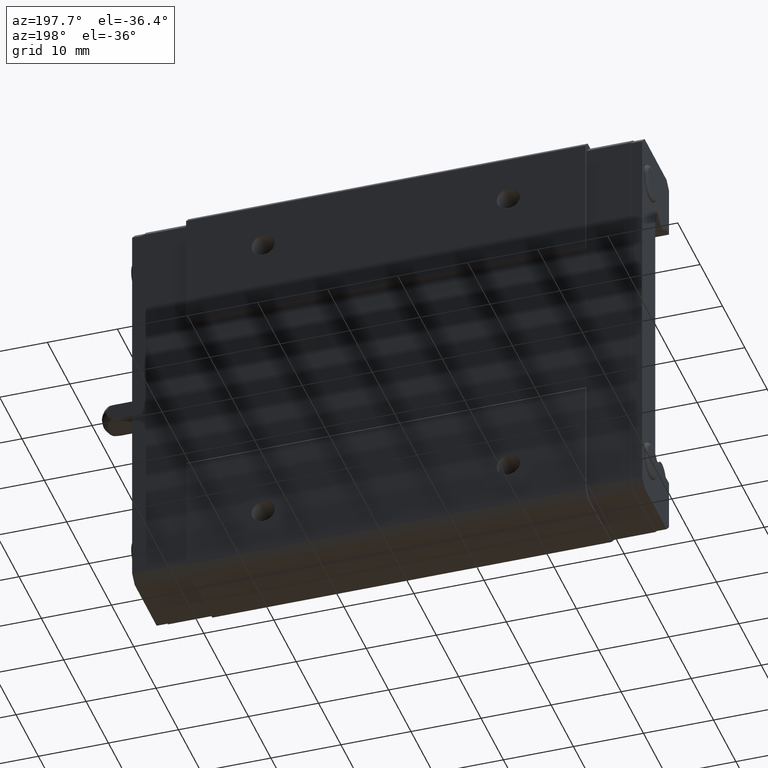
[diagram: clean part render]
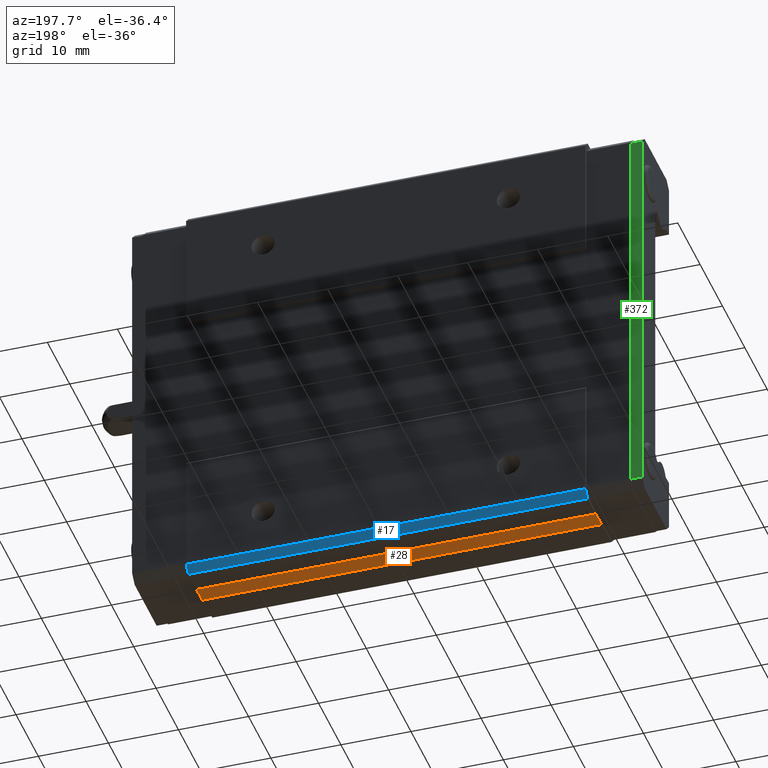
[diagram: same view with three faces highlighted in distinct colors, each labeled with its STEP entity id]
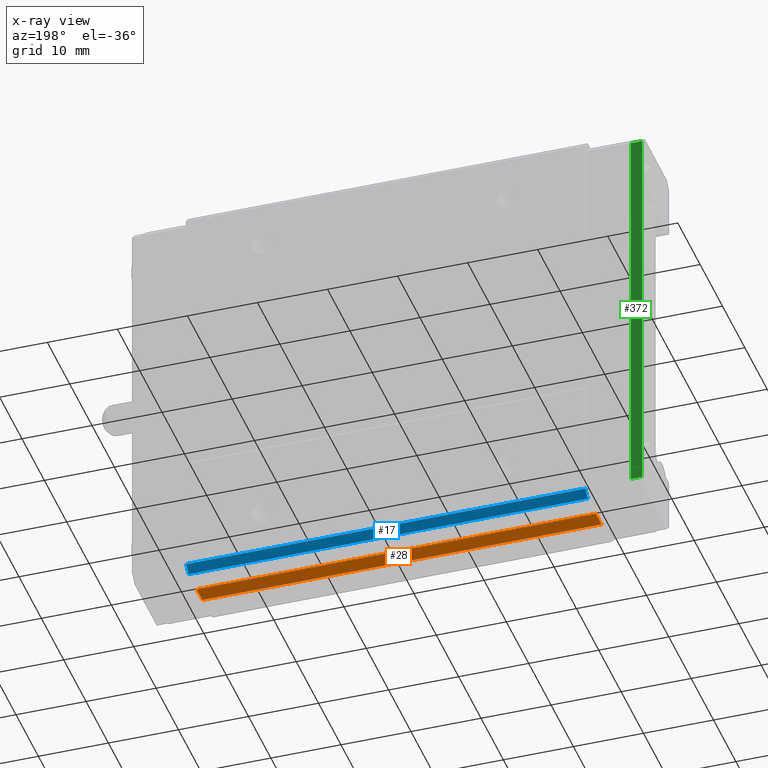
[diagram: x-ray of the same camera — body ghosted, the three highlighted faces saturated]
A machine part, auxiliary view with three faces highlighted in distinct colors.
The next image is the same camera in x-ray (body ghosted, the three faces saturated) — at least one of them is partly hidden behind the body in this view.
Their STEP definitions:

[orange] entity #28 — the highlighted planar face has unit normal (0, -0, -1).
#28 = ADVANCED_FACE ( 'NONE', ( #960 ), #959, .T. ) ;
#30 = EDGE_CURVE ( 'NONE', #3023, #2922, #954, .T. ) ;
#31 = EDGE_LOOP ( 'NONE', ( #34, #3022, #3024, #3089 ) ) ;
#34 = ORIENTED_EDGE ( 'NONE', *, *, #30, .T. ) ;
#951 = DIRECTION ( 'NONE',  ( 1.000000000000000000, 0.0000000000000000000, 0.0000000000000000000 ) ) ;
#952 = VECTOR ( 'NONE', #951, 1000.000000000000000 ) ;
#953 = CARTESIAN_POINT ( 'NONE',  ( -36.90000000000000600, 7.953589838486221800, -29.99999999999999300 ) ) ;
#954 = LINE ( 'NONE', #953, #952 ) ;
#955 = DIRECTION ( 'NONE',  ( 0.0000000000000000000, 1.000000000000000000, -1.119176436114070400E-015 ) ) ;
#956 = DIRECTION ( 'NONE',  ( 0.0000000000000000000, -1.119176436114070400E-015, -1.000000000000000000 ) ) ;
#957 = CARTESIAN_POINT ( 'NONE',  ( 28.50000000000000000, 5.399999999999995900, -29.99999999999998600 ) ) ;
#958 = AXIS2_PLACEMENT_3D ( 'NONE', #957, #956, #955 ) ;
#959 = PLANE ( 'NONE',  #958 ) ;
#960 = FACE_OUTER_BOUND ( 'NONE', #31, .T. ) ;
#2505 = CARTESIAN_POINT ( 'NONE',  ( 28.50000000000000000, 7.953589838486221800, -29.99999999999999300 ) ) ;
#2549 = DIRECTION ( 'NONE',  ( 0.0000000000000000000, -1.000000000000000000, 1.119176436114070400E-015 ) ) ;
#2550 = VECTOR ( 'NONE', #2549, 1000.000000000000000 ) ;
#2551 = CARTESIAN_POINT ( 'NONE',  ( 28.50000000000000000, 5.399999999999995900, -29.99999999999998600 ) ) ;
#2552 = LINE ( 'NONE', #2551, #2550 ) ;
#2557 = CARTESIAN_POINT ( 'NONE',  ( 28.50000000000000000, 5.399999999999995900, -29.99999999999998600 ) ) ;
#2668 = CARTESIAN_POINT ( 'NONE',  ( -28.50000000000000000, 7.953589838486221800, -29.99999999999998900 ) ) ;
#2745 = DIRECTION ( 'NONE',  ( 0.0000000000000000000, -1.000000000000000000, 1.119176436114070400E-015 ) ) ;
#2746 = VECTOR ( 'NONE', #2745, 1000.000000000000000 ) ;
#2747 = CARTESIAN_POINT ( 'NONE',  ( -28.50000000000000000, 5.399999999999995900, -29.99999999999998600 ) ) ;
#2748 = LINE ( 'NONE', #2747, #2746 ) ;
#2749 = DIRECTION ( 'NONE',  ( -1.000000000000000000, 0.0000000000000000000, 0.0000000000000000000 ) ) ;
#2750 = VECTOR ( 'NONE', #2749, 1000.000000000000000 ) ;
#2751 = CARTESIAN_POINT ( 'NONE',  ( 28.50000000000000000, 5.399999999999995900, -29.99999999999998600 ) ) ;
#2752 = LINE ( 'NONE', #2751, #2750 ) ;
#2757 = CARTESIAN_POINT ( 'NONE',  ( -28.50000000000000000, 5.399999999999995900, -29.99999999999998600 ) ) ;
#2922 = VERTEX_POINT ( 'NONE', #2505 ) ;
#2971 = VERTEX_POINT ( 'NONE', #2557 ) ;
#2974 = EDGE_CURVE ( 'NONE', #2922, #2971, #2552, .T. ) ;
#3022 = ORIENTED_EDGE ( 'NONE', *, *, #2974, .T. ) ;
#3023 = VERTEX_POINT ( 'NONE', #2668 ) ;
#3024 = ORIENTED_EDGE ( 'NONE', *, *, #3093, .T. ) ;
#3088 = VERTEX_POINT ( 'NONE', #2757 ) ;
#3089 = ORIENTED_EDGE ( 'NONE', *, *, #3095, .F. ) ;
#3093 = EDGE_CURVE ( 'NONE', #2971, #3088, #2752, .T. ) ;
#3095 = EDGE_CURVE ( 'NONE', #3023, #3088, #2748, .T. ) ;

[blue] entity #17 — the highlighted planar face has unit normal (0, 0.7071, -0.7071).
#6 = EDGE_CURVE ( 'NONE', #2926, #8, #929, .T. ) ;
#7 = ORIENTED_EDGE ( 'NONE', *, *, #2925, .T. ) ;
#8 = VERTEX_POINT ( 'NONE', #925 ) ;
#9 = ORIENTED_EDGE ( 'NONE', *, *, #6, .F. ) ;
#10 = EDGE_CURVE ( 'NONE', #8, #336, #924, .T. ) ;
#11 = ORIENTED_EDGE ( 'NONE', *, *, #10, .F. ) ;
#12 = ORIENTED_EDGE ( 'NONE', *, *, #598, .T. ) ;
#13 = EDGE_LOOP ( 'NONE', ( #12, #11, #9, #7 ) ) ;
#17 = ADVANCED_FACE ( 'NONE', ( #909 ), #914, .T. ) ;
#336 = VERTEX_POINT ( 'NONE', #1374 ) ;
#596 = VERTEX_POINT ( 'NONE', #1785 ) ;
#598 = EDGE_CURVE ( 'NONE', #596, #336, #1784, .T. ) ;
#909 = FACE_OUTER_BOUND ( 'NONE', #13, .T. ) ;
#914 = PLANE ( 'NONE',  #974 ) ;
#921 = DIRECTION ( 'NONE',  ( 0.0000000000000000000, -0.7071067811865512400, -0.7071067811865439100 ) ) ;
#922 = VECTOR ( 'NONE', #921, 1000.000000000000000 ) ;
#923 = CARTESIAN_POINT ( 'NONE',  ( -28.50000000000000000, 11.59999999999998900, -29.99999999999999300 ) ) ;
#924 = LINE ( 'NONE', #923, #922 ) ;
#925 = CARTESIAN_POINT ( 'NONE',  ( -28.50000000000000000, 12.59999999999998900, -29.00000000000000000 ) ) ;
#926 = DIRECTION ( 'NONE',  ( -1.000000000000000000, 0.0000000000000000000, 0.0000000000000000000 ) ) ;
#927 = VECTOR ( 'NONE', #926, 1000.000000000000000 ) ;
#928 = CARTESIAN_POINT ( 'NONE',  ( 28.50000000000000000, 12.59999999999998900, -29.00000000000000000 ) ) ;
#929 = LINE ( 'NONE', #928, #927 ) ;
#971 = DIRECTION ( 'NONE',  ( 0.0000000000000000000, 0.7071067811865512400, 0.7071067811865439100 ) ) ;
#972 = DIRECTION ( 'NONE',  ( 0.0000000000000000000, 0.7071067811865439100, -0.7071067811865512400 ) ) ;
#973 = CARTESIAN_POINT ( 'NONE',  ( 28.50000000000000000, 11.59999999999998900, -29.99999999999999300 ) ) ;
#974 = AXIS2_PLACEMENT_3D ( 'NONE', #973, #972, #971 ) ;
#1374 = CARTESIAN_POINT ( 'NONE',  ( -28.50000000000000000, 11.59999999999998900, -29.99999999999999300 ) ) ;
#1784 = LINE ( 'NONE', #1843, #1842 ) ;
#1785 = CARTESIAN_POINT ( 'NONE',  ( 28.50000000000000000, 11.59999999999998900, -29.99999999999999300 ) ) ;
#1841 = DIRECTION ( 'NONE',  ( -1.000000000000000000, 0.0000000000000000000, 0.0000000000000000000 ) ) ;
#1842 = VECTOR ( 'NONE', #1841, 1000.000000000000000 ) ;
#1843 = CARTESIAN_POINT ( 'NONE',  ( 28.50000000000000000, 11.59999999999998900, -29.99999999999999300 ) ) ;
#2495 = CARTESIAN_POINT ( 'NONE',  ( 28.50000000000000000, 12.59999999999998900, -29.00000000000000000 ) ) ;
#2496 = DIRECTION ( 'NONE',  ( 0.0000000000000000000, -0.7071067811865512400, -0.7071067811865439100 ) ) ;
#2497 = VECTOR ( 'NONE', #2496, 1000.000000000000000 ) ;
#2498 = CARTESIAN_POINT ( 'NONE',  ( 28.50000000000000000, 11.59999999999998900, -29.99999999999999300 ) ) ;
#2499 = LINE ( 'NONE', #2498, #2497 ) ;
#2925 = EDGE_CURVE ( 'NONE', #2926, #596, #2499, .T. ) ;
#2926 = VERTEX_POINT ( 'NONE', #2495 ) ;

[green] entity #372 — the highlighted planar face has unit normal (0, -1, 0).
#283 = VERTEX_POINT ( 'NONE', #1310 ) ;
#295 = VERTEX_POINT ( 'NONE', #1363 ) ;
#296 = EDGE_CURVE ( 'NONE', #283, #295, #1362, .T. ) ;
#307 = ORIENTED_EDGE ( 'NONE', *, *, #329, .F. ) ;
#328 = EDGE_CURVE ( 'NONE', #340, #283, #1389, .T. ) ;
#329 = EDGE_CURVE ( 'NONE', #557, #295, #1385, .T. ) ;
#340 = VERTEX_POINT ( 'NONE', #1365 ) ;
#347 = ORIENTED_EDGE ( 'NONE', *, *, #328, .T. ) ;
#349 = ORIENTED_EDGE ( 'NONE', *, *, #576, .F. ) ;
#354 = ORIENTED_EDGE ( 'NONE', *, *, #296, .T. ) ;
#356 = EDGE_LOOP ( 'NONE', ( #354, #307, #349, #347 ) ) ;
#372 = ADVANCED_FACE ( 'NONE', ( #1454 ), #1458, .F. ) ;
#557 = VERTEX_POINT ( 'NONE', #1730 ) ;
#576 = EDGE_CURVE ( 'NONE', #340, #557, #1762, .T. ) ;
#1310 = CARTESIAN_POINT ( 'NONE',  ( -34.79999999999999700, 11.99999999999999600, 28.35857864376269400 ) ) ;
#1359 = DIRECTION ( 'NONE',  ( 0.0000000000000000000, -1.223420607759091200E-016, -1.000000000000000000 ) ) ;
#1360 = VECTOR ( 'NONE', #1359, 1000.000000000000000 ) ;
#1361 = CARTESIAN_POINT ( 'NONE',  ( -34.79999999999999700, 12.00000000000000000, 0.0000000000000000000 ) ) ;
#1362 = LINE ( 'NONE', #1361, #1360 ) ;
#1363 = CARTESIAN_POINT ( 'NONE',  ( -34.79999999999999700, 11.99999999999999600, -28.35857864376269400 ) ) ;
#1365 = CARTESIAN_POINT ( 'NONE',  ( -36.39999999999999100, 11.99999999999999600, 28.35857864376269400 ) ) ;
#1382 = DIRECTION ( 'NONE',  ( 1.000000000000000000, 0.0000000000000000000, 0.0000000000000000000 ) ) ;
#1383 = VECTOR ( 'NONE', #1382, 1000.000000000000000 ) ;
#1384 = CARTESIAN_POINT ( 'NONE',  ( -36.39999999999999100, 11.99999999999999600, -28.35857864376269400 ) ) ;
#1385 = LINE ( 'NONE', #1384, #1383 ) ;
#1386 = DIRECTION ( 'NONE',  ( 1.000000000000000000, 0.0000000000000000000, 0.0000000000000000000 ) ) ;
#1387 = VECTOR ( 'NONE', #1386, 1000.000000000000000 ) ;
#1388 = CARTESIAN_POINT ( 'NONE',  ( -36.39999999999999100, 11.99999999999999600, 28.35857864376269400 ) ) ;
#1389 = LINE ( 'NONE', #1388, #1387 ) ;
#1450 = DIRECTION ( 'NONE',  ( 0.0000000000000000000, -1.223420607759091200E-016, -1.000000000000000000 ) ) ;
#1451 = DIRECTION ( 'NONE',  ( 0.0000000000000000000, -1.000000000000000000, 1.223420607759091200E-016 ) ) ;
#1452 = CARTESIAN_POINT ( 'NONE',  ( -36.39999999999999100, 12.00000000000000000, 0.0000000000000000000 ) ) ;
#1453 = AXIS2_PLACEMENT_3D ( 'NONE', #1452, #1451, #1450 ) ;
#1454 = FACE_OUTER_BOUND ( 'NONE', #356, .T. ) ;
#1458 = PLANE ( 'NONE',  #1453 ) ;
#1730 = CARTESIAN_POINT ( 'NONE',  ( -36.39999999999999100, 11.99999999999999600, -28.35857864376269400 ) ) ;
#1759 = DIRECTION ( 'NONE',  ( 0.0000000000000000000, -1.223420607759091200E-016, -1.000000000000000000 ) ) ;
#1760 = VECTOR ( 'NONE', #1759, 1000.000000000000000 ) ;
#1761 = CARTESIAN_POINT ( 'NONE',  ( -36.39999999999999100, 12.00000000000000000, 0.0000000000000000000 ) ) ;
#1762 = LINE ( 'NONE', #1761, #1760 ) ;